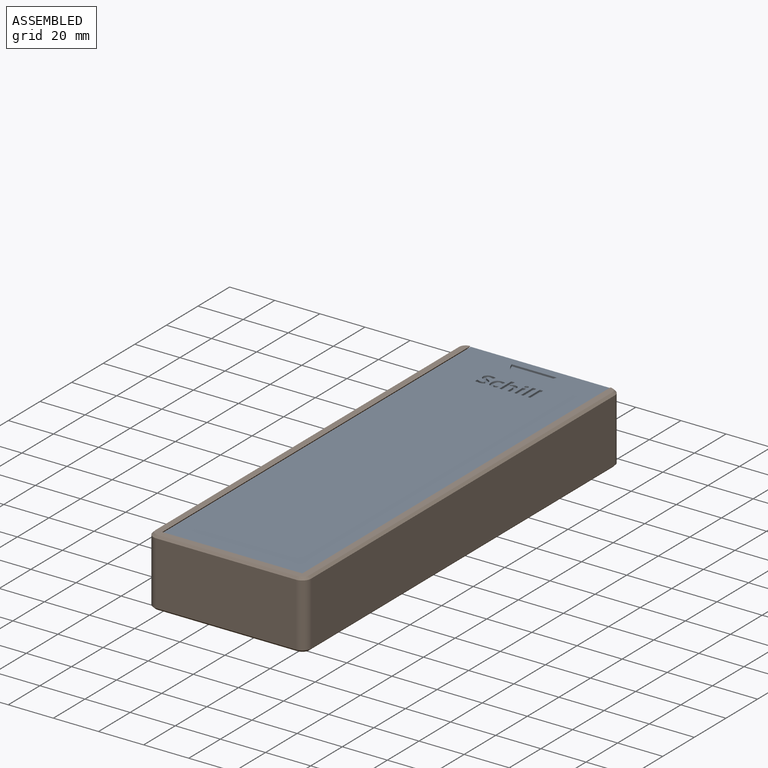
[diagram: assembled view]
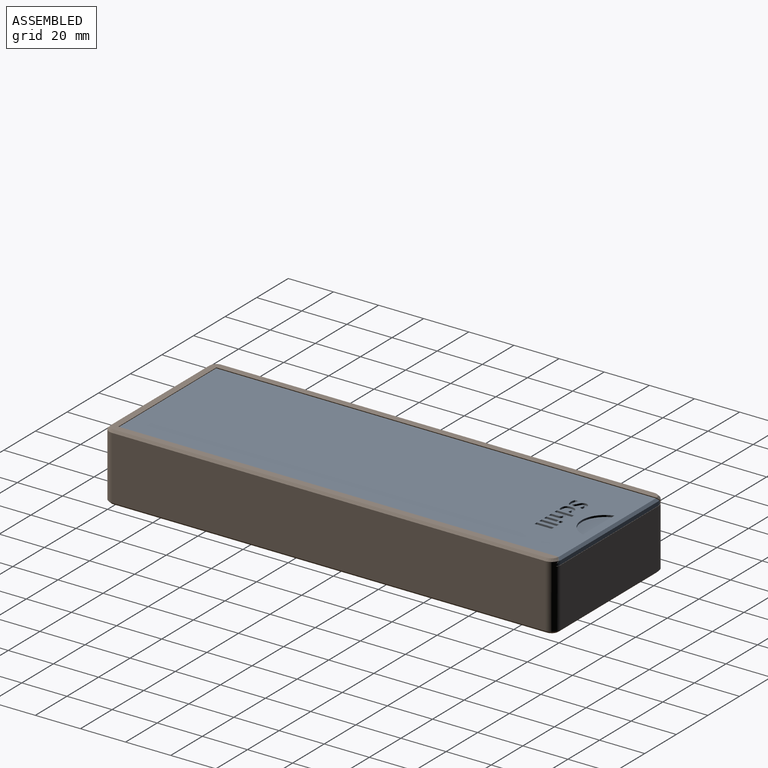
[diagram: assembled view, second angle]
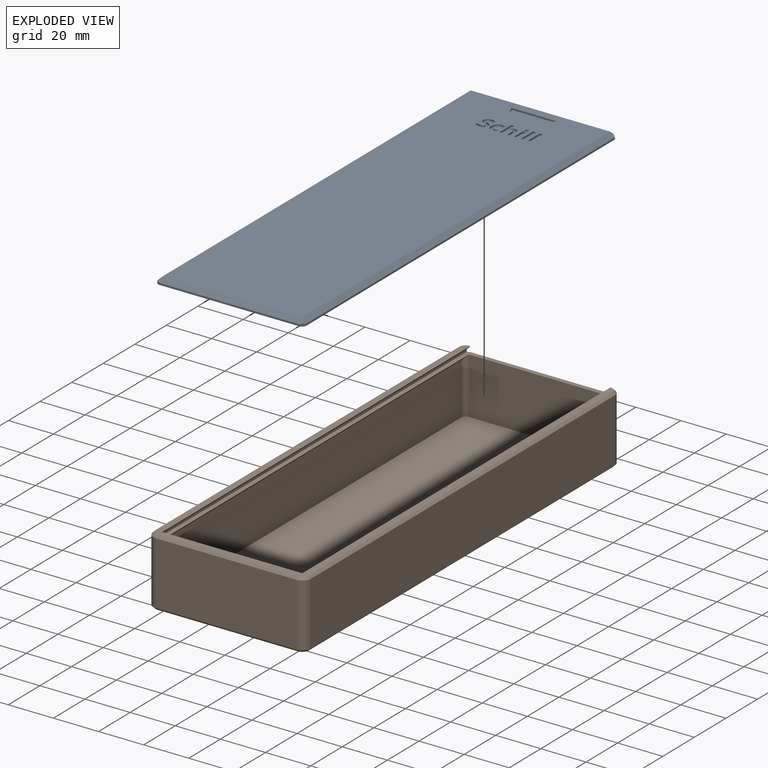
[diagram: exploded view]
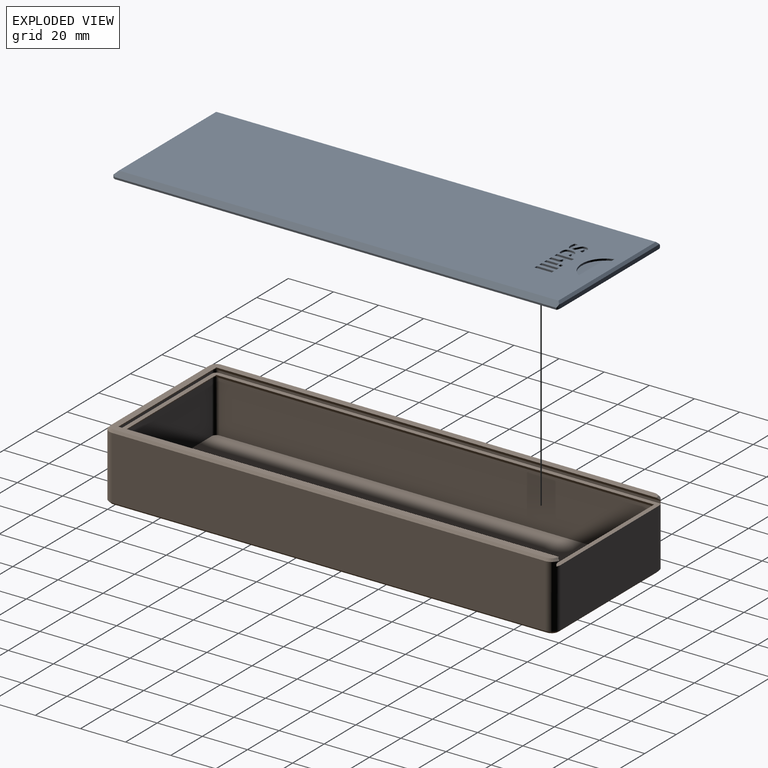
[diagram: exploded view, second angle]
ASSEMBLY  parts=2 mates=2
PART A: 100 faces, bbox 65.6x197.8x2.8 mm
  f0: plane 194.8x61.6mm, normal (0,0,1), area 11803mm2, adj f3,f4,f8,f13,f14,f16,f17,f18
  f1: plane 195.26x0.8mm, normal (1,0,0), area 156.2mm2, adj f3,f5,f9,f12
  f2: plane 195.26x0.8mm, normal (-1,0,0), area 156.2mm2, adj f4,f5,f10,f11
  f3: plane 197.11x2mm, normal (0.71,0,0.71), area 554.9mm2, adj f0,f1,f8,f9,f12,f16
  f4: plane 197.11x2mm, normal (-0.71,0,0.71), area 554.9mm2, adj f0,f2,f8,f10,f11,f16
  f5: plane 197.8x65.6mm, normal (0,0,-1), area 12973.3mm2, adj f1,f2,f6,f7,f9,f10,f11,f12
  f6: plane 61.6x1.8mm, normal (0,-1,0), area 110.9mm2, adj f5,f11,f12,f16
  f7: plane 61.6x0.8mm, normal (0,1,0), area 49.3mm2, adj f5,f8,f9,f10
  f8: plane 64.43x2mm, normal (0,0.71,0.71), area 178.7mm2, adj f0,f3,f4,f7,f9,f10
  f9: cylinder r=2mm len=2mm, axis (0,0,1), area 3.1mm2, adj f1,f3,f5,f7,f8
  f10: cylinder r=2mm len=2mm, axis (0,0,-1), area 3.1mm2, adj f2,f4,f5,f7,f8
  f11: cylinder r=4mm len=2mm, axis (0,0,-1), area 3.3mm2, adj f2,f4,f5,f6,f16
  f12: cylinder r=4mm len=2mm, axis (0,0,-1), area 3.3mm2, adj f1,f3,f5,f6,f16
  f13: plane 20x0.8mm, normal (0,1,0), area 16mm2, adj f0,f14,f15
  f14: cylinder r=10.42mm len=20mm, axis (0,0,-1), area 21.5mm2, adj f0,f13,f15
  f15: plane 20x7.5mm, normal (0,0,1), area 110.5mm2, adj f13,f14
  f16: plane 63.4x1mm, normal (0,-0.71,0.71), area 88.4mm2, adj f0,f3,f4,f6,f11,f12
  f17: extruded ~1.18x0.8mm, area 1mm2, adj f0,f18,f44,f45
  f18: extruded ~1.52x0.8mm, area 1.4mm2, adj f0,f17,f19,f45
  f19: extruded ~1.93x0.8mm, area 1.6mm2, adj f0,f18,f20,f45
  f20: extruded ~2.02x0.8mm, area 1.7mm2, adj f0,f19,f21,f45
  f21: plane 1.4x0.8mm, normal (-1,0,0), area 1.1mm2, adj f0,f20,f22,f45
  f22: extruded ~1.22x0.8mm, area 1mm2, adj f0,f21,f23,f45
  f23: extruded ~0.91x0.8mm, area 0.7mm2, adj f0,f22,f24,f45
  f24: extruded ~0.8x0.76mm, area 0.6mm2, adj f0,f23,f25,f45
  f25: extruded ~0.8x0.57mm, area 0.5mm2, adj f0,f24,f26,f45
  f26: extruded ~0.8x0.37mm, area 0.3mm2, adj f0,f25,f27,f45
  f27: extruded ~0.8x0.34mm, area 0.4mm2, adj f0,f26,f28,f45
  f28: extruded ~0.92x0.8mm, area 0.8mm2, adj f0,f27,f29,f45
  f29: extruded ~0.98x0.8mm, area 0.9mm2, adj f0,f28,f30,f45
  f30: extruded ~0.8x0.66mm, area 0.7mm2, adj f0,f29,f31,f45
  f31: extruded ~0.88x0.8mm, area 0.7mm2, adj f0,f30,f32,f45
  f32: extruded ~1.49x0.8mm, area 1.3mm2, adj f0,f31,f33,f45
  f33: extruded ~1.77x0.8mm, area 1.5mm2, adj f0,f32,f34,f45
  f34: extruded ~1.06x0.8mm, area 0.9mm2, adj f0,f33,f35,f45
  f35: extruded ~1.05x0.8mm, area 0.9mm2, adj f0,f34,f36,f45
  f36: plane 1.18x0.8mm, normal (0.92,-0.38,0), area 1mm2, adj f0,f35,f37,f45
  f37: extruded ~0.94x0.8mm, area 0.8mm2, adj f0,f36,f38,f45
  f38: extruded ~0.8x0.73mm, area 0.6mm2, adj f0,f37,f39,f45
  f39: extruded ~0.8x0.66mm, area 0.6mm2, adj f0,f38,f40,f45
  f40: extruded ~0.8x0.52mm, area 0.5mm2, adj f0,f39,f41,f45
  f41: extruded ~0.8x0.35mm, area 0.3mm2, adj f0,f40,f42,f45
  f42: extruded ~0.8x0.29mm, area 0.3mm2, adj f0,f41,f43,f45
  f43: extruded ~0.96x0.8mm, area 0.9mm2, adj f0,f42,f44,f45
  f44: extruded ~1.37x0.96mm, area 1.3mm2, adj f0,f17,f43,f45
  f45: plane 7.32x4.64mm, normal (0,0,1), area 19.1mm2, adj f17,f18,f19,f20,f21,f22,f23,f24
  f46: extruded ~0.93x0.8mm, area 0.7mm2, adj f0,f47,f59,f60
  f47: extruded ~2.79x2.54mm, area 3.5mm2, adj f0,f46,f48,f60
  f48: extruded ~2.12x0.8mm, area 1.8mm2, adj f0,f47,f49,f60
  f49: extruded ~1.98x0.8mm, area 1.7mm2, adj f0,f48,f50,f60
  f50: extruded ~1.7x0.8mm, area 1.4mm2, adj f0,f49,f51,f60
  f51: plane 1.15x0.8mm, normal (0.93,-0.36,0), area 1mm2, adj f0,f50,f52,f60
  f52: extruded ~0.8x0.65mm, area 0.6mm2, adj f0,f51,f53,f60
  f53: extruded ~0.8x0.6mm, area 0.5mm2, adj f0,f52,f54,f60
  f54: extruded ~1.65x1.16mm, area 1.8mm2, adj f0,f53,f55,f60
  f55: extruded ~1.6x1.16mm, area 1.8mm2, adj f0,f54,f56,f60
  f56: extruded ~0.8x0.79mm, area 0.6mm2, adj f0,f55,f57,f60
  f57: extruded ~0.8x0.73mm, area 0.7mm2, adj f0,f56,f58,f60
  f58: plane 1.27x0.8mm, normal (1,0,0), area 1mm2, adj f0,f57,f59,f60
  f59: extruded ~0.8x0.73mm, area 0.6mm2, adj f0,f46,f58,f60
  f60: plane 5.64x4.37mm, normal (0,0,1), area 13.2mm2, adj f46,f47,f48,f49,f50,f51,f52,f53
  f61: plane 7.58x0.8mm, normal (1,0,0), area 6.1mm2, adj f0,f62,f64,f65
  f62: plane 1.49x0.8mm, normal (0,-1,0), area 1.2mm2, adj f0,f61,f63,f65
  f63: plane 7.58x0.8mm, normal (-1,0,0), area 6.1mm2, adj f0,f62,f64,f65
  f64: plane 1.49x0.8mm, normal (0,1,0), area 1.2mm2, adj f0,f61,f63,f65
  f65: plane 7.58x1.49mm, normal (0,0,1), area 11.3mm2, adj f61,f62,f63,f64
  f66: plane 5.45x0.8mm, normal (1,0,0), area 4.4mm2, adj f0,f67,f69,f70
  f67: plane 1.49x0.8mm, normal (0,-1,0), area 1.2mm2, adj f0,f66,f68,f70
  f68: plane 5.45x0.8mm, normal (-1,0,0), area 4.4mm2, adj f0,f67,f69,f70
  f69: plane 1.49x0.8mm, normal (0,1,0), area 1.2mm2, adj f0,f66,f68,f70
  f70: plane 5.45x1.49mm, normal (0,0,1), area 8.1mm2, adj f66,f67,f68,f69
  f71: extruded ~0.81x0.8mm, area 1mm2, adj f0,f72,f75,f76
  f72: extruded ~0.81x0.8mm, area 1mm2, adj f0,f71,f73,f76
  f73: extruded ~0.81x0.8mm, area 1mm2, adj f0,f72,f74,f76
  f74: extruded ~0.8x0.54mm, area 0.5mm2, adj f0,f73,f75,f76
  f75: extruded ~0.8x0.61mm, area 0.5mm2, adj f0,f71,f74,f76
  f76: plane 1.62x1.46mm, normal (0,0,1), area 2mm2, adj f71,f72,f73,f74,f75
  f77: plane 3.55x0.8mm, normal (1,0,0), area 2.8mm2, adj f0,f78,f93,f94
  f78: plane 1.49x0.8mm, normal (0,-1,0), area 1.2mm2, adj f0,f77,f79,f94
  f79: plane 3.18x0.8mm, normal (-1,0,0), area 2.5mm2, adj f0,f78,f80,f94
  f80: extruded ~1.18x0.88mm, area 1.3mm2, adj f0,f79,f81,f94
  f81: extruded ~0.9x0.8mm, area 0.8mm2, adj f0,f80,f82,f94
  f82: extruded ~1.37x0.8mm, area 1.1mm2, adj f0,f81,f83,f94
  f83: plane 2.56x0.8mm, normal (1,0,0), area 2mm2, adj f0,f82,f84,f94
  f84: plane 1.49x0.8mm, normal (0,-1,0), area 1.2mm2, adj f0,f83,f85,f94
  f85: plane 7.58x0.8mm, normal (-1,0,0), area 6.1mm2, adj f0,f84,f86,f94
  f86: plane 1.49x0.8mm, normal (0,1,0), area 1.2mm2, adj f0,f85,f87,f94
  f87: plane 1.54x0.8mm, normal (1,0,0), area 1.2mm2, adj f0,f86,f88,f94
  f88: extruded ~0.85x0.8mm, area 0.7mm2, adj f0,f87,f89,f94
  f89: plane 0.8x0.44mm, normal (1,-0.08,0), area 0.4mm2, adj f0,f88,f90,f94
  f90: plane 0.8x0.08mm, normal (0,1,0), area 0.1mm2, adj f0,f89,f91,f94
  f91: extruded ~1.58x0.8mm, area 1.5mm2, adj f0,f90,f92,f94
  f92: extruded ~1.46x0.8mm, area 1.3mm2, adj f0,f91,f93,f94
  f93: extruded ~1.48x0.8mm, area 1.3mm2, adj f0,f77,f92,f94
  f94: plane 7.58x5.03mm, normal (0,0,1), area 21.4mm2, adj f77,f78,f79,f80,f81,f82,f83,f84
  f95: plane 7.58x0.8mm, normal (1,0,0), area 6.1mm2, adj f0,f96,f98,f99
  f96: plane 1.49x0.8mm, normal (0,-1,0), area 1.2mm2, adj f0,f95,f97,f99
  f97: plane 7.58x0.8mm, normal (-1,0,0), area 6.1mm2, adj f0,f96,f98,f99
  f98: plane 1.49x0.8mm, normal (0,1,0), area 1.2mm2, adj f0,f95,f97,f99
  f99: plane 7.58x1.49mm, normal (0,0,1), area 11.3mm2, adj f95,f96,f97,f98
PART B: 46 faces, bbox 70.1x200.1x30.1 mm
  f0: plane 62x23mm, normal (0,1,0), area 1426mm2, adj f16,f20,f21,f23
  f1: plane 195.41x2mm, normal (-0.71,0,-0.71), area 549.7mm2, adj f17,f18,f20,f23,f24
  f2: plane 195.41x2mm, normal (0.71,0,-0.71), area 549.7mm2, adj f15,f18,f20,f21,f22
  f3: plane 62x1mm, normal (0,1,0), area 62mm2, adj f18,f19,f25,f26
  f4: plane 197.39x2.11mm, normal (-0.71,0,-0.71), area 555.4mm2, adj f6,f9,f19,f25,f28,f31
  f5: plane 197.39x2.11mm, normal (0.71,0,-0.71), area 555.4mm2, adj f6,f8,f19,f26,f27,f37
  f6: plane 198x68mm, normal (0,0,1), area 1366.3mm2, adj f4,f5,f19,f31,f32,f33,f34,f35
  f7: plane 62x26mm, normal (0,1,0), area 1612mm2, adj f18,f27,f28,f42
  f8: plane 195.46x1mm, normal (1,0,0), area 195.5mm2, adj f5,f18,f26,f27
  f9: plane 195.46x1mm, normal (-1,0,0), area 195.5mm2, adj f4,f18,f25,f28
  f10: plane 62x25mm, normal (0,-1,0), area 1550mm2, adj f16,f18,f22,f24
  f11: plane 192x28mm, normal (-1,0,0), area 5376mm2, adj f27,f29,f36,f38
  f12: plane 198x68mm, normal (0,0,-1), area 13456.3mm2, adj f38,f39,f40,f41,f42,f43,f44,f45
  f13: plane 192x28mm, normal (1,0,0), area 5376mm2, adj f28,f30,f32,f45
  f14: plane 62x28mm, normal (0,-1,0), area 1736mm2, adj f29,f30,f34,f41
  f15: plane 192x23mm, normal (1,0,0), area 4416mm2, adj f2,f16,f21,f22
  f16: plane 196x66mm, normal (0,0,1), area 12932.6mm2, adj f0,f10,f15,f17,f21,f22,f23,f24
  f17: plane 192x23mm, normal (-1,0,0), area 4416mm2, adj f1,f16,f23,f24
  f18: plane 198x66mm, normal (0,0,1), area 1037.6mm2, adj f1,f2,f3,f7,f8,f9,f10,f20
  f19: plane 64.83x2mm, normal (0,0.71,-0.71), area 179.8mm2, adj f3,f4,f5,f6,f25,f26
  f20: plane 64.83x2mm, normal (0,0.71,-0.71), area 179.8mm2, adj f0,f1,f2,f18,f21,f23
  f21: cylinder r=2mm len=23.59mm, axis (0,0,-1), area 72.9mm2, adj f0,f2,f15,f16,f20
  f22: cylinder r=2mm len=25mm, axis (0,0,1), area 74.5mm2, adj f2,f10,f15,f16
  f23: cylinder r=2mm len=23.59mm, axis (0,0,1), area 72.9mm2, adj f0,f1,f16,f17,f20
  f24: cylinder r=2mm len=25mm, axis (0,0,-1), area 74.5mm2, adj f1,f10,f16,f17
  f25: cylinder r=2mm len=2mm, axis (0,0,1), area 3.8mm2, adj f3,f4,f9,f18,f19
  f26: cylinder r=2mm len=2mm, axis (0,0,-1), area 3.8mm2, adj f3,f5,f8,f18,f19
  f27: cylinder r=4mm len=28mm, axis (0,0,-1), area 172.3mm2, adj f5,f7,f8,f11,f18,f37,f40
  f28: cylinder r=4mm len=28mm, axis (0,0,1), area 172.3mm2, adj f4,f7,f9,f13,f18,f31,f44
  f29: cylinder r=4mm len=28mm, axis (0,0,1), area 175.9mm2, adj f11,f14,f35,f39
  f30: cylinder r=4mm len=28mm, axis (0,0,-1), area 175.9mm2, adj f13,f14,f33,f43
  f31: cone r=3mm half-angle=45deg, axis (0,0,-1), area 7.1mm2, adj f4,f6,f28,f32
  f32: plane 192x1mm, normal (0.71,0,0.71), area 271.5mm2, adj f6,f13,f31,f33
  f33: cone r=3mm half-angle=45deg, axis (0,0,-1), area 7.8mm2, adj f6,f30,f32,f34
  f34: plane 62x1mm, normal (0,-0.71,0.71), area 87.7mm2, adj f6,f14,f33,f35
  f35: cone r=3mm half-angle=45deg, axis (0,0,-1), area 7.8mm2, adj f6,f29,f34,f36
  f36: plane 192x1mm, normal (-0.71,0,0.71), area 271.5mm2, adj f6,f11,f35,f37
  f37: cone r=3mm half-angle=45deg, axis (0,0,-1), area 7.1mm2, adj f5,f6,f27,f36
  f38: plane 192x1mm, normal (-0.71,0,-0.71), area 271.5mm2, adj f11,f12,f39,f40
  f39: cone r=3mm half-angle=45deg, axis (0,0,1), area 7.8mm2, adj f12,f29,f38,f41
  f40: cone r=3mm half-angle=45deg, axis (0,0,1), area 7.8mm2, adj f12,f27,f38,f42
  f41: plane 62x1mm, normal (0,-0.71,-0.71), area 87.7mm2, adj f12,f14,f39,f43
  f42: plane 62x1mm, normal (0,0.71,-0.71), area 87.7mm2, adj f7,f12,f40,f44
  f43: cone r=3mm half-angle=45deg, axis (0,0,1), area 7.8mm2, adj f12,f30,f41,f45
  f44: cone r=3mm half-angle=45deg, axis (0,0,1), area 7.8mm2, adj f12,f28,f42,f45
  f45: plane 192x1mm, normal (0.71,0,-0.71), area 271.5mm2, adj f12,f13,f43,f44
PLACE A rot(axis=(0,0,-1),180deg) t=(-14.27,-165.41,-0.99)mm
PLACE B t=(-14.27,32.5,-27.99)mm fixed
MATE planar B.f18 <-> A.f5  axis (0,0,1) through (16.73,-66.5,-0.99)mm
MATE slider B.f4 <-> A.f4  axis (-0.71,0,-0.71) through (17.73,-66.11,1.01)mm
